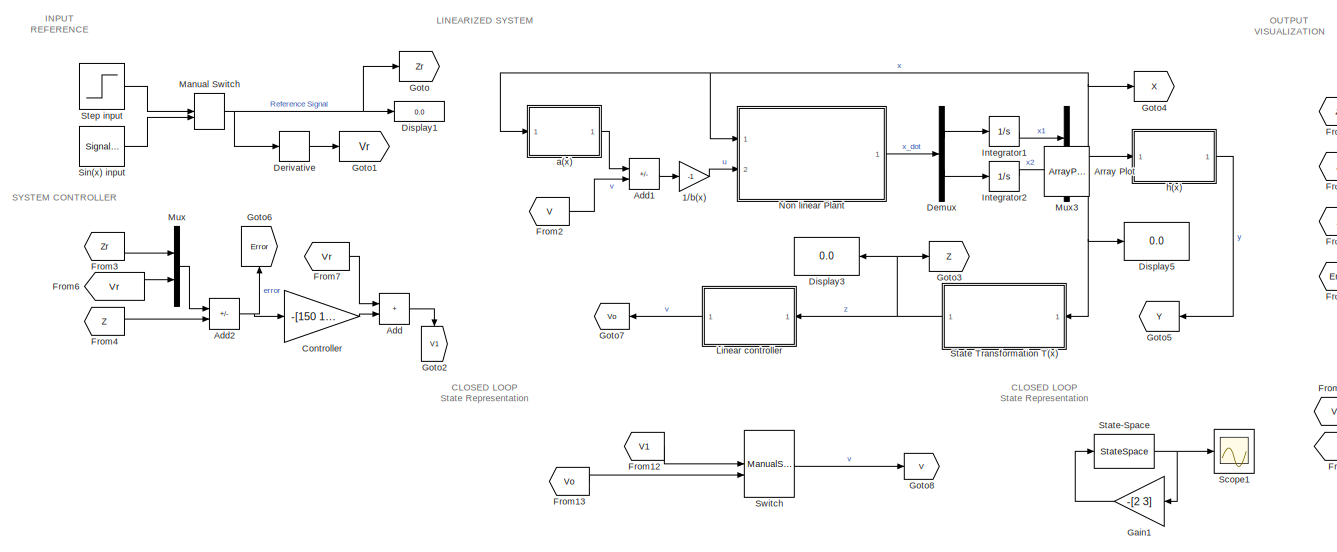
[diagram: root canvas - part 1/2, most of the canvas]
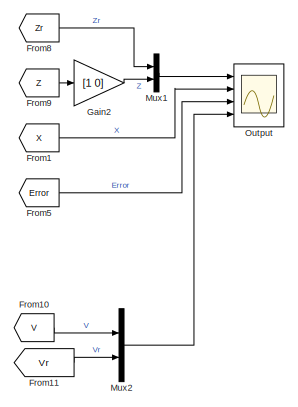
[diagram: root canvas - part 2/2, middle right region]
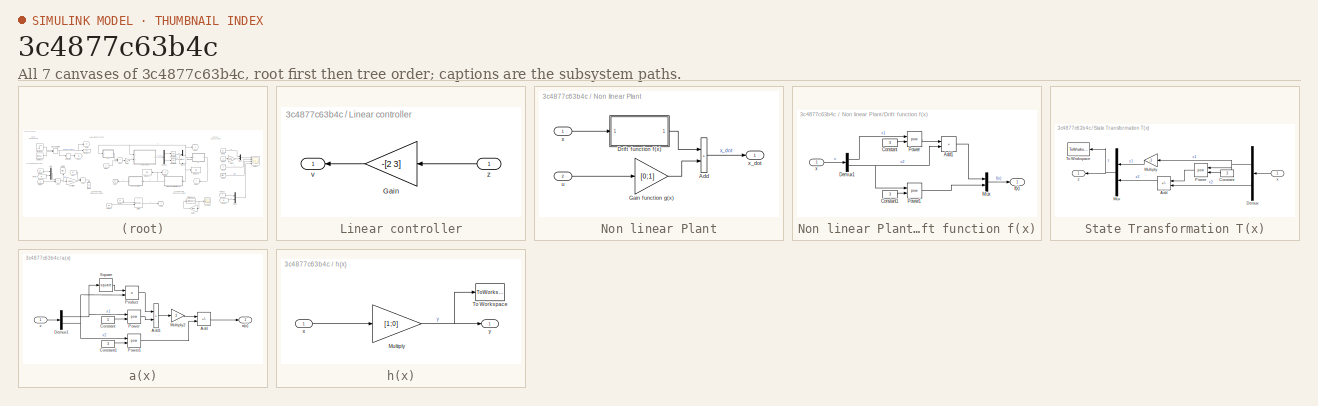
[diagram: thumbnail index - all 7 canvases of the model, root first then tree order]
MODEL slx_3c4877c63b4c
KIND model
CONFIG AbsTol = auto
CONFIG EnableMultiTasking = off
CONFIG FixedStep = auto
CONFIG MaxStep = auto
CONFIG MinStep = auto
CONFIG RelTol = 1e-6
CONFIG SampleTimeConstraint = Unconstrained
CONFIG SolverName = ode45
CONFIG StartTime = 0.0
CONFIG StopTime = 30
BLOCK [Gain] 1//b(x)
  Gain = -1
BLOCK [Sum] Add
  IconShape = rectangular
  Ports = [2, 1]
BLOCK [Sum] Add1
  IconShape = rectangular
  Inputs = -+
  Ports = [2, 1]
BLOCK [Sum] Add2
  IconShape = rectangular
  Inputs = -+
  Ports = [2, 1]
BLOCK [ArrayPlot] Array Plot
  DefaultConfigurationName = dsp.scopes.ArrayPlotBlockSpecification
  GraphicalSettings = {"Style":{"BackgroundColor":[0.1568627450980392,0.1568627450980392,0.1568627450980392],"AxesColor":[0,0,0],"LabelsColor":[0.6862745098039216,0.6862745098039216,0.6862745098039216],"LineStyle":["-"],"LineColor":[[1,1,0.06666666666666667]],"LineWidth":[1.5],"Marker":["o"],"FontSize":"small"},"Cursors":{"Enabled":false,"XLocation":[-0.25,0.25],"SnapToData":false,"LockSpacing":false,"ShowText":false},...<+329ch>
  IOType = viewer
  IsFloating = on
  Ports = [1]
  ScopeFrameLocation = window
  ShowLegend = on
  WasSavedAsWebScope = on
  WindowPosition = [175.000000,148.000000,800.000000,500.000000,]
BLOCK [Gain] Controller
  Gain = -[150 13]
  Multiplication = Matrix(K*u)
BLOCK [Demux] Demux
  Outputs = 2
  Ports = [1, 2]
BLOCK [Derivative] Derivative
BLOCK [Display] Display1
  Decimation = 1
  Ports = [1]
BLOCK [Display] Display3
  Decimation = 1
  Ports = [1]
BLOCK [Display] Display5
  Decimation = 1
  Ports = [1]
BLOCK [From] From1
  GotoTag = X
BLOCK [From] From10
  GotoTag = V
BLOCK [From] From11
  GotoTag = Vr
  NameLocation = top
BLOCK [From] From12
  GotoTag = V1
BLOCK [From] From13
  GotoTag = Vo
BLOCK [From] From2
  GotoTag = V
BLOCK [From] From3
  GotoTag = Zr
BLOCK [From] From4
  GotoTag = Z
BLOCK [From] From5
  GotoTag = Error
BLOCK [From] From6
  GotoTag = Vr
  NameLocation = top
BLOCK [From] From7
  GotoTag = Vr
  NameLocation = top
BLOCK [From] From8
  GotoTag = Zr
BLOCK [From] From9
  GotoTag = Z
BLOCK [Gain] Gain1
  Gain = -[2 3]
  Multiplication = Matrix(K*u)
BLOCK [Gain] Gain2
  Gain = [1 0]
  Multiplication = Matrix(K*u)
  NameLocation = top
BLOCK [Goto] Goto
  GotoTag = Zr
BLOCK [Goto] Goto1
  GotoTag = Vr
BLOCK [Goto] Goto2
  GotoTag = V1
  NameLocation = left
BLOCK [Goto] Goto3
  GotoTag = Z
BLOCK [Goto] Goto4
  GotoTag = X
  NameLocation = top
BLOCK [Goto] Goto5
  GotoTag = Y
BLOCK [Goto] Goto6
  GotoTag = Error
  NameLocation = left
BLOCK [Goto] Goto7
  GotoTag = Vo
  NameLocation = top
BLOCK [Goto] Goto8
  GotoTag = V
BLOCK [Integrator] Integrator1
  InitialCondition = 1
  Ports = [1, 1]
BLOCK [Integrator] Integrator2
  Ports = [1, 1]
BLOCK [SubSystem] Linear controller
  Ports = [1, 1]
  RequestExecContextInheritance = off
BLOCK [Gain] Linear controller/Gain
  Gain = -[2 3]
  Multiplication = Matrix(K*u)
BLOCK [Outport] Linear controller/v
BLOCK [Inport] Linear controller/z
BLOCK [ManualSwitch] Manual Switch
  CurrentSetting = 0
BLOCK [Mux] Mux
  DisplayOption = bar
  Inputs = 2
  Ports = [2, 1]
BLOCK [Mux] Mux1
  DisplayOption = bar
  Inputs = 2
  Ports = [2, 1]
BLOCK [Mux] Mux2
  DisplayOption = bar
  Inputs = 2
  Ports = [2, 1]
BLOCK [Mux] Mux3
  DisplayOption = bar
  Inputs = 2
  Ports = [2, 1]
BLOCK [SubSystem] Non linear Plant
  Ports = [2, 1]
  RequestExecContextInheritance = off
BLOCK [Sum] Non linear Plant/Add
  IconShape = rectangular
  Ports = [2, 1]
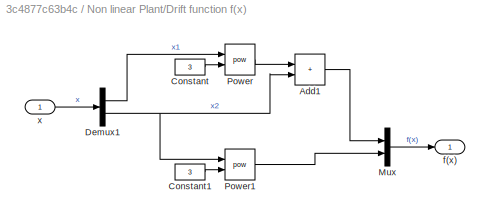
BLOCK [SubSystem] Non linear Plant/Drift function f(x)
  Ports = [1, 1]
  RequestExecContextInheritance = off
BLOCK [Sum] Non linear Plant/Drift function f(x)/Add1
  IconShape = rectangular
  Ports = [2, 1]
BLOCK [Constant] Non linear Plant/Drift function f(x)/Constant
  Value = 3
BLOCK [Constant] Non linear Plant/Drift function f(x)/Constant1
  Value = 3
BLOCK [Demux] Non linear Plant/Drift function f(x)/Demux1
  Outputs = 2
  Ports = [1, 2]
BLOCK [Mux] Non linear Plant/Drift function f(x)/Mux
  DisplayOption = bar
  Inputs = 2
  Ports = [2, 1]
BLOCK [Math] Non linear Plant/Drift function f(x)/Power
  Operator = pow
  Ports = [2, 1]
BLOCK [Math] Non linear Plant/Drift function f(x)/Power1
  Operator = pow
  Ports = [2, 1]
BLOCK [Outport] Non linear Plant/Drift function f(x)/f(x)
BLOCK [Inport] Non linear Plant/Drift function f(x)/x
BLOCK [Gain] Non linear Plant/Gain function g(x)
  Gain = [0;1]
BLOCK [Inport] Non linear Plant/u
  Port = 2
BLOCK [Inport] Non linear Plant/x
BLOCK [Outport] Non linear Plant/x_dot
BLOCK [Scope] Output
  Floating = off
  NumInputPorts = 4
  Ports = [4]
  ScopeSpecificationString = Simulink.scopes.TimeScopeBlockCfg('CurrentConfiguration', extmgr.ConfigurationSet(extmgr.Configuration('Core','General UI',true),extmgr.Configuration('Core','Source UI',true),extmgr.Configuration('Sources','WiredSimulink',true,'DataLoggingVariableName','ScopeData3'),extmgr.Configuration('Visuals','Time Domain',true,'SerializedDisplays',{struct('MinYLimReal','-1.07768','MaxYLimReal','0.92246','YLab...<+3664ch>
BLOCK [Scope] Scope1
  Floating = off
  NumInputPorts = 1
  Ports = [1]
  ScopeSpecificationString = Simulink.scopes.TimeScopeBlockCfg('CurrentConfiguration', extmgr.ConfigurationSet(extmgr.Configuration('Core','General UI',true),extmgr.Configuration('Core','Source UI',true),extmgr.Configuration('Sources','WiredSimulink',true,'DataLoggingVariableName','ScopeData3'),extmgr.Configuration('Visuals','Time Domain',true,'SerializedDisplays',{struct('MinYLimReal','-0.93933','MaxYLimReal','2.32659','YLab...<+1463ch>
BLOCK [SignalGenerator] Sin(x) input
  Ports = [0, 1]
  Units = rad/sec
BLOCK [SubSystem] State Transformation T(x)
  Ports = [1, 1]
  RequestExecContextInheritance = off
BLOCK [Sum] State Transformation T(x)/Add
  IconShape = rectangular
  Inputs = --
  Ports = [2, 1]
BLOCK [Constant] State Transformation T(x)/Constant
  Value = 3
BLOCK [Demux] State Transformation T(x)/Demux
  Outputs = 2
  Ports = [1, 2]
BLOCK [Gain] State Transformation T(x)/Multiply
  Gain = -1
BLOCK [Mux] State Transformation T(x)/Mux
  DisplayOption = bar
  Inputs = 2
  Ports = [2, 1]
BLOCK [Math] State Transformation T(x)/Power
  Operator = pow
  Ports = [2, 1]
BLOCK [ToWorkspace] State Transformation T(x)/To Workspace
  FixptAsFi = on
  MaxDataPoints = inf
  Ports = [1]
  SampleTime = -1
  SaveFormat = Timeseries
  VariableName = z
BLOCK [Inport] State Transformation T(x)/x
BLOCK [Outport] State Transformation T(x)/z
BLOCK [StateSpace] State-Space
  A = [0 1;0 0]
  B = [0;1]
  C = [1 0;0 1]
  D = [0;0]
  InitialCondition = [1;2]
  Ports = [1, 1]
BLOCK [Step] Step input
  After = 2
  SampleTime = 0
  Time = 2
BLOCK [ManualSwitch] Switch
  NameLocation = top
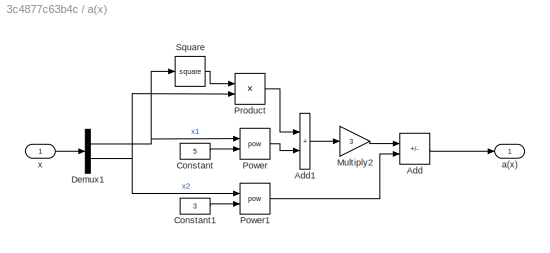
BLOCK [SubSystem] a(x)
  Ports = [1, 1]
  RequestExecContextInheritance = off
BLOCK [Sum] a(x)/Add
  IconShape = rectangular
  Inputs = --
  Ports = [2, 1]
BLOCK [Sum] a(x)/Add1
  IconShape = rectangular
  Ports = [2, 1]
BLOCK [Constant] a(x)/Constant
  Value = 5
BLOCK [Constant] a(x)/Constant1
  Value = 3
BLOCK [Demux] a(x)/Demux1
  Outputs = 2
  Ports = [1, 2]
BLOCK [Gain] a(x)/Multiply2
  Gain = 3
BLOCK [Math] a(x)/Power
  Operator = pow
  Ports = [2, 1]
BLOCK [Math] a(x)/Power1
  Operator = pow
  Ports = [2, 1]
BLOCK [Product] a(x)/Product
  Ports = [2, 1]
BLOCK [Math] a(x)/Square
  Operator = square
  Ports = [1, 1]
BLOCK [Outport] a(x)/a(x)
BLOCK [Inport] a(x)/x
BLOCK [SubSystem] h(x)
  Ports = [1, 1]
  RequestExecContextInheritance = off
BLOCK [Gain] h(x)/Multiply
  Gain = [1;0]
  Multiplication = Matrix(u*K)
BLOCK [ToWorkspace] h(x)/To Workspace
  FixptAsFi = on
  MaxDataPoints = inf
  Ports = [1]
  SampleTime = -1
  SaveFormat = Timeseries
  VariableName = y
BLOCK [Inport] h(x)/x
BLOCK [Outport] h(x)/y
ANNOTATION (root): CLOSED LOOP State Representation
ANNOTATION (root): INPUT REFERENCE
ANNOTATION (root): LINEARIZED SYSTEM
ANNOTATION (root): OUTPUT VISUALIZATION
ANNOTATION (root): SYSTEM CONTROLLER
LINE 1//b(x):1 -> Non linear Plant:2
LINE Add1:1 -> 1//b(x):1
NET Add2:1 -> Controller:1, Goto6:1
LINE Add:1 -> Goto2:1
LINE Controller:1 -> Add:2
LINE Demux:1 -> Integrator1:1
LINE Demux:2 -> Integrator2:1
LINE Derivative:1 -> Goto1:1
LINE From10:1 -> Mux2:1
LINE From11:1 -> Mux2:2
LINE From12:1 -> Switch:1
LINE From13:1 -> Switch:2
LINE From1:1 -> Output:2
LINE From2:1 -> Add1:2
LINE From3:1 -> Mux:1
LINE From4:1 -> Add2:2
LINE From5:1 -> Output:3
LINE From6:1 -> Mux:2
LINE From7:1 -> Add:1
LINE From8:1 -> Mux1:1
LINE From9:1 -> Gain2:1
LINE Gain1:1 -> State-Space:1
LINE Gain2:1 -> Mux1:2
LINE Integrator1:1 -> Mux3:1
LINE Integrator2:1 -> Mux3:2
LINE Linear controller/Gain:1 -> Linear controller/v:1
LINE Linear controller/z:1 -> Linear controller/Gain:1
LINE Linear controller:1 -> Goto7:1
NET Manual Switch:1 -> Derivative:1, Display1:1, Goto:1
LINE Mux1:1 -> Output:1
LINE Mux2:1 -> Output:4
NET Mux3:1 -> Display5:1, Goto4:1, Non linear Plant:1, State Transformation T(x):1, a(x):1, h(x):1
LINE Mux:1 -> Add2:1
LINE Non linear Plant/Add:1 -> Non linear Plant/x_dot:1
LINE Non linear Plant/Drift function f(x)/Add1:1 -> Non linear Plant/Drift function f(x)/Mux:1
LINE Non linear Plant/Drift function f(x)/Constant1:1 -> Non linear Plant/Drift function f(x)/Power1:2
LINE Non linear Plant/Drift function f(x)/Constant:1 -> Non linear Plant/Drift function f(x)/Power:2
LINE Non linear Plant/Drift function f(x)/Demux1:1 -> Non linear Plant/Drift function f(x)/Power:1
NET Non linear Plant/Drift function f(x)/Demux1:2 -> Non linear Plant/Drift function f(x)/Add1:2, Non linear Plant/Drift function f(x)/Power1:1
LINE Non linear Plant/Drift function f(x)/Mux:1 -> Non linear Plant/Drift function f(x)/f(x):1
LINE Non linear Plant/Drift function f(x)/Power1:1 -> Non linear Plant/Drift function f(x)/Mux:2
LINE Non linear Plant/Drift function f(x)/Power:1 -> Non linear Plant/Drift function f(x)/Add1:1
LINE Non linear Plant/Drift function f(x)/x:1 -> Non linear Plant/Drift function f(x)/Demux1:1
LINE Non linear Plant/Drift function f(x):1 -> Non linear Plant/Add:1
LINE Non linear Plant/Gain function g(x):1 -> Non linear Plant/Add:2
LINE Non linear Plant/u:1 -> Non linear Plant/Gain function g(x):1
LINE Non linear Plant/x:1 -> Non linear Plant/Drift function f(x):1
LINE Non linear Plant:1 -> Demux:1
LINE Sin(x) input:1 -> Manual Switch:2
LINE State Transformation T(x)/Add:1 -> State Transformation T(x)/Mux:2
LINE State Transformation T(x)/Constant:1 -> State Transformation T(x)/Power:2
NET State Transformation T(x)/Demux:1 -> State Transformation T(x)/Multiply:1, State Transformation T(x)/Power:1
LINE State Transformation T(x)/Demux:2 -> State Transformation T(x)/Add:2
LINE State Transformation T(x)/Multiply:1 -> State Transformation T(x)/Mux:1
NET State Transformation T(x)/Mux:1 -> State Transformation T(x)/To Workspace:1, State Transformation T(x)/z:1
LINE State Transformation T(x)/Power:1 -> State Transformation T(x)/Add:1
LINE State Transformation T(x)/x:1 -> State Transformation T(x)/Demux:1
NET State Transformation T(x):1 -> Display3:1, Goto3:1, Linear controller:1
NET State-Space:1 -> Gain1:1, Scope1:1
LINE Step input:1 -> Manual Switch:1
LINE Switch:1 -> Goto8:1
LINE a(x)/Add1:1 -> a(x)/Multiply2:1
LINE a(x)/Add:1 -> a(x)/a(x):1
LINE a(x)/Constant1:1 -> a(x)/Power1:2
LINE a(x)/Constant:1 -> a(x)/Power:2
NET a(x)/Demux1:1 -> a(x)/Power:1, a(x)/Square:1
NET a(x)/Demux1:2 -> a(x)/Power1:1, a(x)/Product:2
LINE a(x)/Multiply2:1 -> a(x)/Add:1
LINE a(x)/Power1:1 -> a(x)/Add:2
LINE a(x)/Power:1 -> a(x)/Add1:2
LINE a(x)/Product:1 -> a(x)/Add1:1
LINE a(x)/Square:1 -> a(x)/Product:1
LINE a(x)/x:1 -> a(x)/Demux1:1
LINE a(x):1 -> Add1:1
NET h(x)/Multiply:1 -> h(x)/To Workspace:1, h(x)/y:1
LINE h(x)/x:1 -> h(x)/Multiply:1
LINE h(x):1 -> Goto5:1
note: NET lines group one-source signal fan-out (src -> all destinations, sorted); 1:1 wires keep LINE
